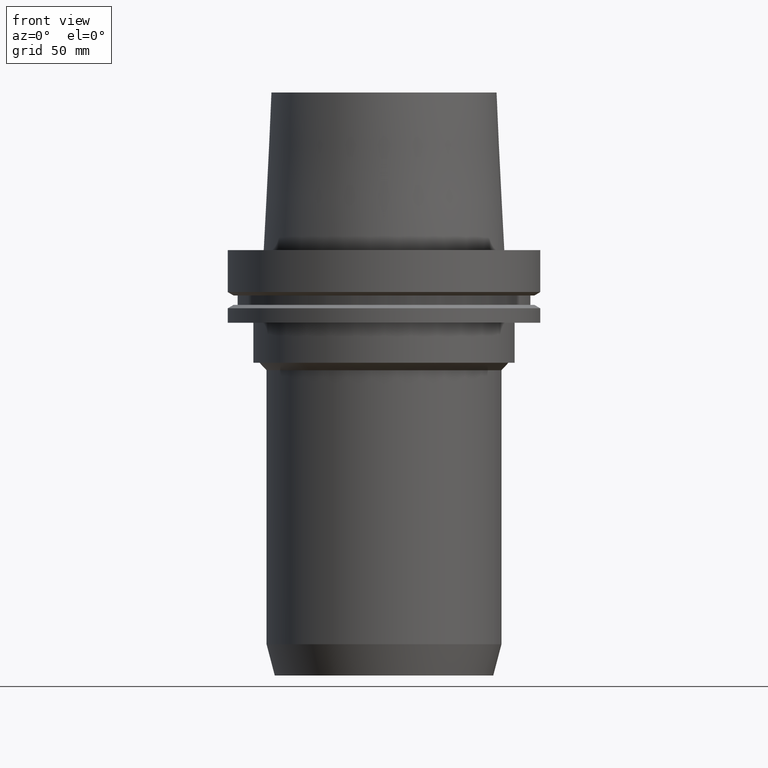
[diagram: clean part render]
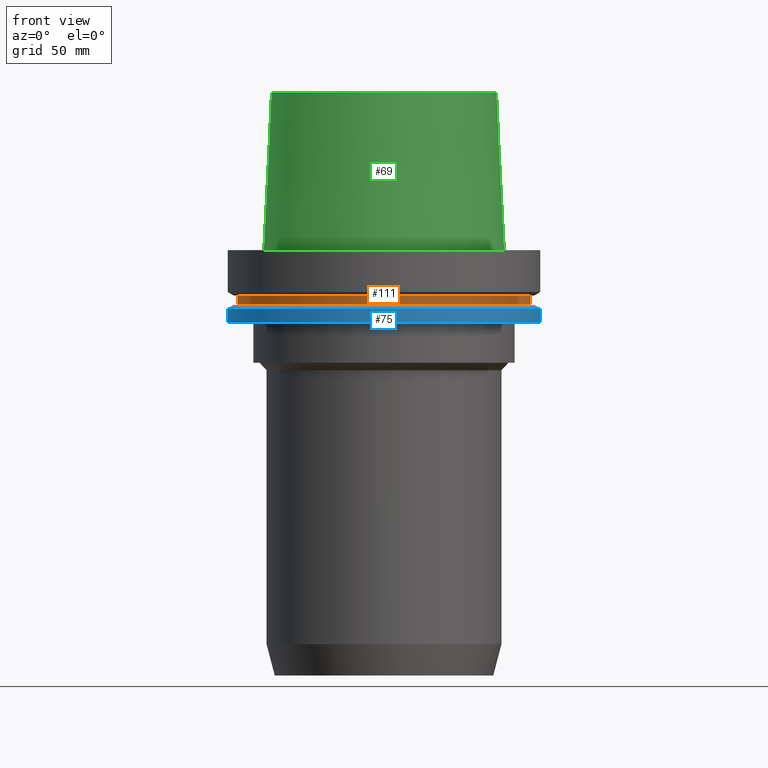
[diagram: same view with three faces highlighted in distinct colors, each labeled with its STEP entity id]
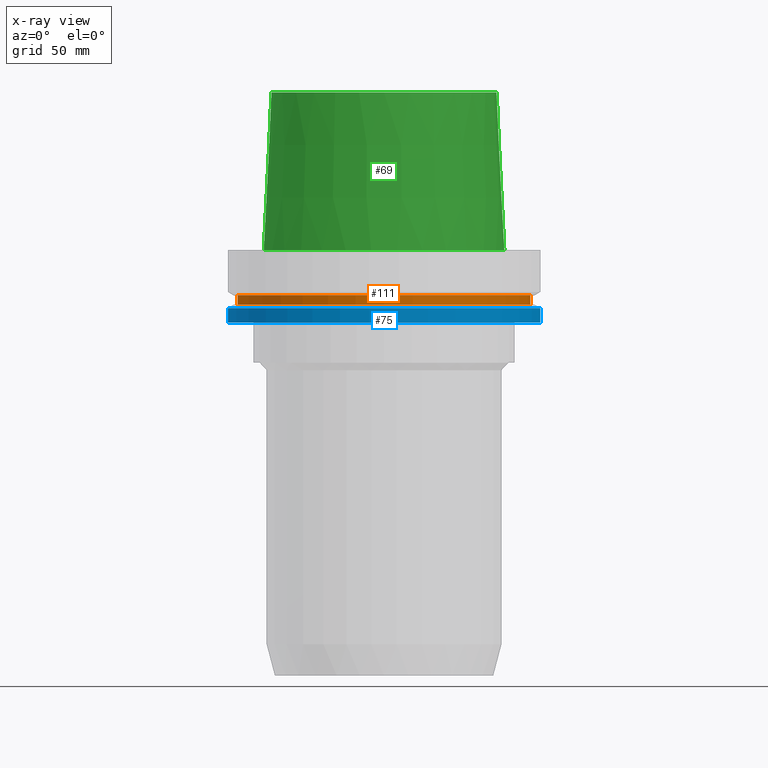
[diagram: x-ray of the same camera — body ghosted, the three highlighted faces saturated]
A machine part, front view with three faces highlighted in distinct colors.
The next image is the same camera in x-ray (body ghosted, the three faces saturated) — at least one of them is partly hidden behind the body in this view.
Their STEP definitions:

[orange] entity #111 — the highlighted cylindrical surface (bore or boss wall) has radius 58.5 mm, axis along (0, 0, -1).
#96=EDGE_CURVE('Unnamed[1]',#220,#220,#221,.T.);
#111=ADVANCED_FACE('Unnamed[1]',(#243,#244),#245,.T.);
#123=EDGE_CURVE('Unnamed[1]',#261,#261,#262,.T.);
#220=VERTEX_POINT('',#375);
#221=CIRCLE('',#376,58.5);
#243=FACE_BOUND('',#404,.T.);
#244=FACE_BOUND('',#405,.T.);
#245=CYLINDRICAL_SURFACE('',#406,58.4999999999999);
#261=VERTEX_POINT('',#426);
#262=CIRCLE('',#427,58.4999999999998);
#375=CARTESIAN_POINT('',(1.10983616172739E-015,58.5,-18.1250000000017));
#376=AXIS2_PLACEMENT_3D('',#537,#538,#539);
#404=EDGE_LOOP('',(#562));
#405=EDGE_LOOP('',(#563));
#406=AXIS2_PLACEMENT_3D('',#564,#565,#566);
#426=CARTESIAN_POINT('',(1.33945743656732E-015,58.4999999999998,-21.8749999999984));
#427=AXIS2_PLACEMENT_3D('',#580,#581,#582);
#537=CARTESIAN_POINT('',(1.10983616172739E-015,2.21967232345478E-015,-18.1250000000017));
#538=DIRECTION('',(6.12323399573677E-017,1.22464679914735E-016,-1.0));
#539=DIRECTION('',(-1.23259516440783E-032,1.0,1.22464679914735E-016));
#562=ORIENTED_EDGE('',*,*,#123,.F.);
#563=ORIENTED_EDGE('',*,*,#96,.T.);
#564=CARTESIAN_POINT('',(1.22464679914736E-015,2.44929359829471E-015,-20.0));
#565=DIRECTION('',(6.12323399573677E-017,1.22464679914735E-016,-1.0));
#566=DIRECTION('',(-1.23259516440783E-032,1.0,1.22464679914735E-016));
#580=CARTESIAN_POINT('',(1.33945743656732E-015,2.67891487313464E-015,-21.8749999999984));
#581=DIRECTION('',(6.12323399573677E-017,1.22464679914735E-016,-1.0));
#582=DIRECTION('',(-1.23259516440783E-032,1.0,1.22464679914735E-016));

[blue] entity #75 — the highlighted cylindrical surface (bore or boss wall) has radius 62.5 mm, axis along (0, 0, -1).
#58=EDGE_CURVE('Unnamed[1]',#160,#160,#161,.T.);
#75=ADVANCED_FACE('Unnamed[1]',(#186,#187),#188,.T.);
#135=EDGE_CURVE('Unnamed[1]',#280,#280,#281,.T.);
#160=VERTEX_POINT('',#301);
#161=CIRCLE('',#302,62.5);
#186=FACE_BOUND('',#333,.T.);
#187=FACE_BOUND('',#334,.T.);
#188=CYLINDRICAL_SURFACE('',#335,62.5);
#280=VERTEX_POINT('',#450);
#281=CIRCLE('',#451,62.5);
#301=CARTESIAN_POINT('',(1.77573785876367E-015,62.5,-29.0000000000001));
#302=AXIS2_PLACEMENT_3D('',#467,#468,#469);
#333=EDGE_LOOP('',(#497));
#334=EDGE_LOOP('',(#498));
#335=AXIS2_PLACEMENT_3D('',#499,#500,#501);
#450=CARTESIAN_POINT('',(1.42350465640827E-015,62.5,-23.2475952641916));
#451=AXIS2_PLACEMENT_3D('',#601,#602,#603);
#467=CARTESIAN_POINT('',(1.77573785876367E-015,3.55147571752733E-015,-29.0000000000001));
#468=DIRECTION('',(6.12323399573677E-017,1.22464679914735E-016,-1.0));
#469=DIRECTION('',(-1.23259516440783E-032,1.0,1.22464679914735E-016));
#497=ORIENTED_EDGE('',*,*,#58,.F.);
#498=ORIENTED_EDGE('',*,*,#135,.T.);
#499=CARTESIAN_POINT('',(1.59962125758597E-015,3.19924251517194E-015,-26.1237976320958));
#500=DIRECTION('',(6.12323399573677E-017,1.22464679914735E-016,-1.0));
#501=DIRECTION('',(-1.23259516440783E-032,1.0,1.22464679914735E-016));
#601=CARTESIAN_POINT('',(1.42350465640827E-015,2.84700931281654E-015,-23.2475952641916));
#602=DIRECTION('',(6.12323399573677E-017,1.22464679914735E-016,-1.0));
#603=DIRECTION('',(-1.23259516440783E-032,1.0,1.22464679914735E-016));

[green] entity #69 — the highlighted conical surface has half-angle 2.868 deg.
#69=ADVANCED_FACE('Unnamed[1]',(#176,#177),#178,.T.);
#98=EDGE_CURVE('Unnamed[1]',#223,#223,#224,.T.);
#121=EDGE_CURVE('Unnamed[1]',#258,#258,#259,.T.);
#176=FACE_BOUND('',#321,.T.);
#177=FACE_BOUND('',#322,.T.);
#178=CONICAL_SURFACE('',#323,46.5560961923844,0.0500583457465964);
#223=VERTEX_POINT('',#379);
#224=CIRCLE('',#380,48.1342525050097);
#258=VERTEX_POINT('',#422);
#259=CIRCLE('',#423,44.9779398797591);
#321=EDGE_LOOP('',(#485));
#322=EDGE_LOOP('',(#486));
#323=AXIS2_PLACEMENT_3D('',#487,#488,#489);
#379=CARTESIAN_POINT('',(3.88342032297484E-029,48.1342525050097,-6.38005254174039E-013));
#380=AXIS2_PLACEMENT_3D('',#540,#541,#542);
#422=CARTESIAN_POINT('',(-3.85763741731416E-015,44.9779398797591,62.9999999999999));
#423=AXIS2_PLACEMENT_3D('',#577,#578,#579);
#485=ORIENTED_EDGE('',*,*,#98,.F.);
#486=ORIENTED_EDGE('',*,*,#121,.T.);
#487=CARTESIAN_POINT('',(-1.92881870865706E-015,-3.85763741731412E-015,31.4999999999996));
#488=DIRECTION('',(6.12323399573676E-017,1.22464679914735E-016,-1.0));
#489=DIRECTION('',(-1.23259516440783E-032,1.0,1.22464679914735E-016));
#540=CARTESIAN_POINT('',(4.00275388022765E-029,8.00550776045529E-029,-6.53699316899292E-013));
#541=DIRECTION('',(6.12323399573677E-017,1.22464679914735E-016,-1.0));
#542=DIRECTION('',(-1.23259516440783E-032,1.0,1.22464679914735E-016));
#577=CARTESIAN_POINT('',(-3.85763741731416E-015,-7.71527483462831E-015,62.9999999999999));
#578=DIRECTION('',(6.12323399573677E-017,1.22464679914735E-016,-1.0));
#579=DIRECTION('',(-1.23259516440783E-032,1.0,1.22464679914735E-016));